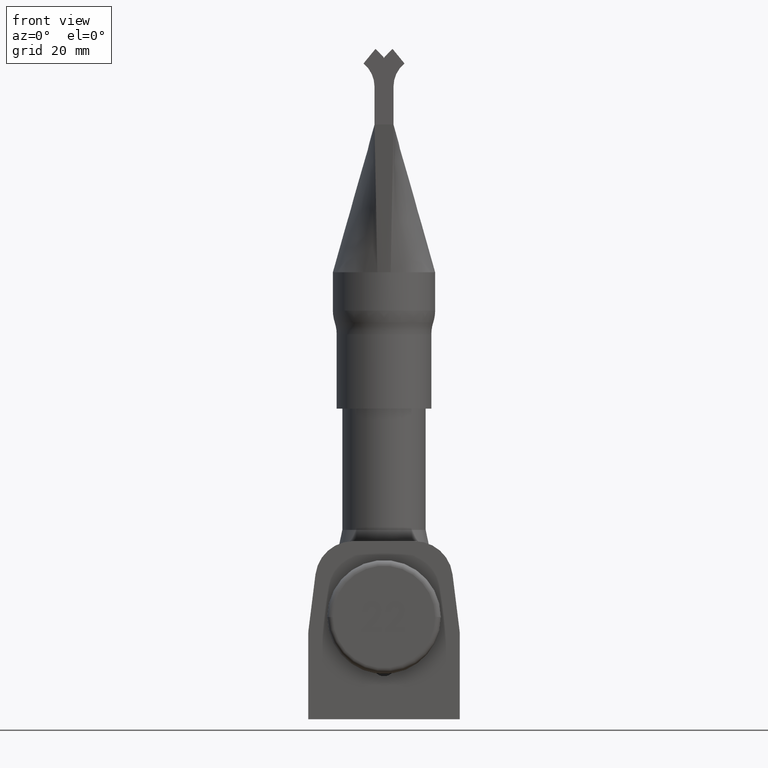
[diagram: clean part render]
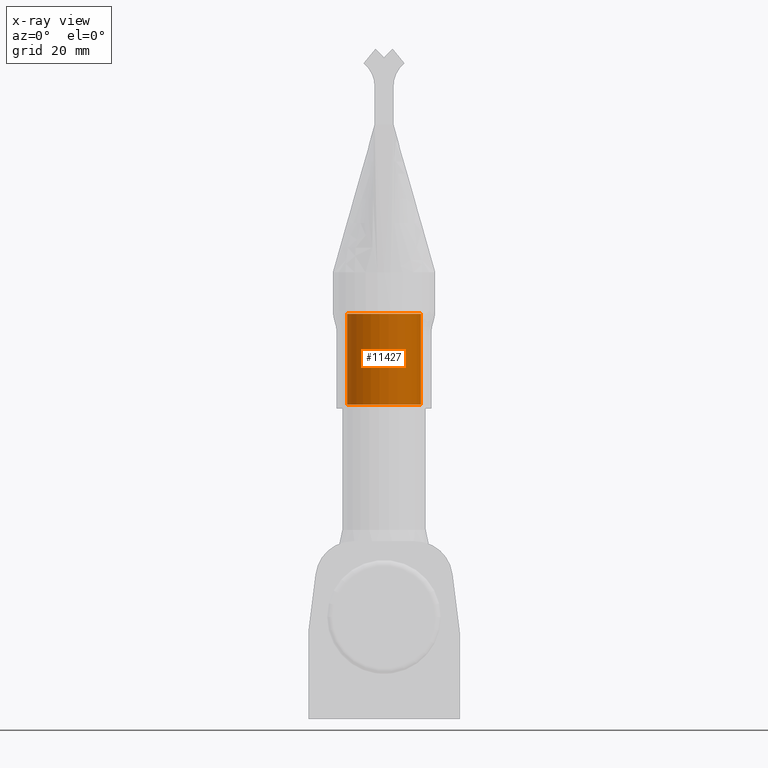
[diagram: x-ray — body ghosted, one internal face saturated and labeled with its STEP entity id]
A machine part, front view, then the same camera in x-ray: the body is ghosted and one INTERNAL B-rep face — a face not visible from any outside direction — is saturated and labeled: STEP entity #11427.
In plain terms, the highlighted cylindrical surface (partial cylindrical patch) has radius 9.75 mm, axis along (-0, -0, -1).
Its self-contained STEP definition (entity closure, byte-faithful):
#301 = DIRECTION ( 'NONE',  ( -1.000000000000000000, 0.0000000000000000000, 0.0000000000000000000 ) ) ;
#1042 = ORIENTED_EDGE ( 'NONE', *, *, #15584, .T. ) ;
#1683 = CIRCLE ( 'NONE', #5093, 9.749999999999994700 ) ;
#2488 = EDGE_LOOP ( 'NONE', ( #2969, #18222, #1042, #5096 ) ) ;
#2969 = ORIENTED_EDGE ( 'NONE', *, *, #12429, .F. ) ;
#3537 = AXIS2_PLACEMENT_3D ( 'NONE', #4928, #15765, #301 ) ;
#3685 = CIRCLE ( 'NONE', #3537, 9.749999999999992900 ) ;
#3974 = CARTESIAN_POINT ( 'NONE',  ( 0.0000000000000000000, 0.0000000000000000000, 0.9999999999999940000 ) ) ;
#4928 = CARTESIAN_POINT ( 'NONE',  ( 0.0000000000000000000, 0.0000000000000000000, 25.00000000000000000 ) ) ;
#5093 = AXIS2_PLACEMENT_3D ( 'NONE', #3974, #11576, #17927 ) ;
#5096 = ORIENTED_EDGE ( 'NONE', *, *, #19399, .F. ) ;
#5278 = CYLINDRICAL_SURFACE ( 'NONE', #15591, 9.749999999999994700 ) ;
#5729 = CARTESIAN_POINT ( 'NONE',  ( 9.749999999999992900, 1.194030629168668500E-015, 25.00000000000000000 ) ) ;
#6023 = DIRECTION ( 'NONE',  ( -0.0000000000000000000, -0.0000000000000000000, -1.000000000000000000 ) ) ;
#7217 = FACE_OUTER_BOUND ( 'NONE', #2488, .T. ) ;
#7933 = VECTOR ( 'NONE', #19525, 1000.000000000000000 ) ;
#8090 = VERTEX_POINT ( 'NONE', #16014 ) ;
#8744 = CARTESIAN_POINT ( 'NONE',  ( 9.749999999999994700, 1.194030629168668700E-015, 0.0000000000000000000 ) ) ;
#10470 = VERTEX_POINT ( 'NONE', #17255 ) ;
#10973 = EDGE_CURVE ( 'NONE', #20075, #17904, #13044, .T. ) ;
#11427 = ADVANCED_FACE ( 'NONE', ( #7217 ), #5278, .F. ) ;
#11576 = DIRECTION ( 'NONE',  ( 0.0000000000000000000, 0.0000000000000000000, -1.000000000000000000 ) ) ;
#12036 = LINE ( 'NONE', #14910, #7933 ) ;
#12429 = EDGE_CURVE ( 'NONE', #20075, #8090, #3685, .T. ) ;
#13044 = LINE ( 'NONE', #8744, #16657 ) ;
#13210 = DIRECTION ( 'NONE',  ( -1.000000000000000000, 0.0000000000000000000, 0.0000000000000000000 ) ) ;
#13473 = CARTESIAN_POINT ( 'NONE',  ( 0.0000000000000000000, 0.0000000000000000000, 0.0000000000000000000 ) ) ;
#14910 = CARTESIAN_POINT ( 'NONE',  ( -9.749999999999994700, 0.0000000000000000000, 0.0000000000000000000 ) ) ;
#15584 = EDGE_CURVE ( 'NONE', #17904, #10470, #1683, .T. ) ;
#15591 = AXIS2_PLACEMENT_3D ( 'NONE', #13473, #19707, #13210 ) ;
#15765 = DIRECTION ( 'NONE',  ( -0.0000000000000000000, -0.0000000000000000000, -1.000000000000000000 ) ) ;
#16014 = CARTESIAN_POINT ( 'NONE',  ( -9.749999999999992900, 0.0000000000000000000, 25.00000000000000000 ) ) ;
#16657 = VECTOR ( 'NONE', #6023, 1000.000000000000000 ) ;
#17255 = CARTESIAN_POINT ( 'NONE',  ( -9.749999999999994700, 0.0000000000000000000, 0.9999999999999940000 ) ) ;
#17904 = VERTEX_POINT ( 'NONE', #19467 ) ;
#17927 = DIRECTION ( 'NONE',  ( 1.000000000000000000, 0.0000000000000000000, 0.0000000000000000000 ) ) ;
#18222 = ORIENTED_EDGE ( 'NONE', *, *, #10973, .T. ) ;
#19399 = EDGE_CURVE ( 'NONE', #8090, #10470, #12036, .T. ) ;
#19467 = CARTESIAN_POINT ( 'NONE',  ( 9.749999999999994700, 1.194030629168668700E-015, 0.9999999999999940000 ) ) ;
#19525 = DIRECTION ( 'NONE',  ( -0.0000000000000000000, -0.0000000000000000000, -1.000000000000000000 ) ) ;
#19707 = DIRECTION ( 'NONE',  ( -0.0000000000000000000, -0.0000000000000000000, -1.000000000000000000 ) ) ;
#20075 = VERTEX_POINT ( 'NONE', #5729 ) ;